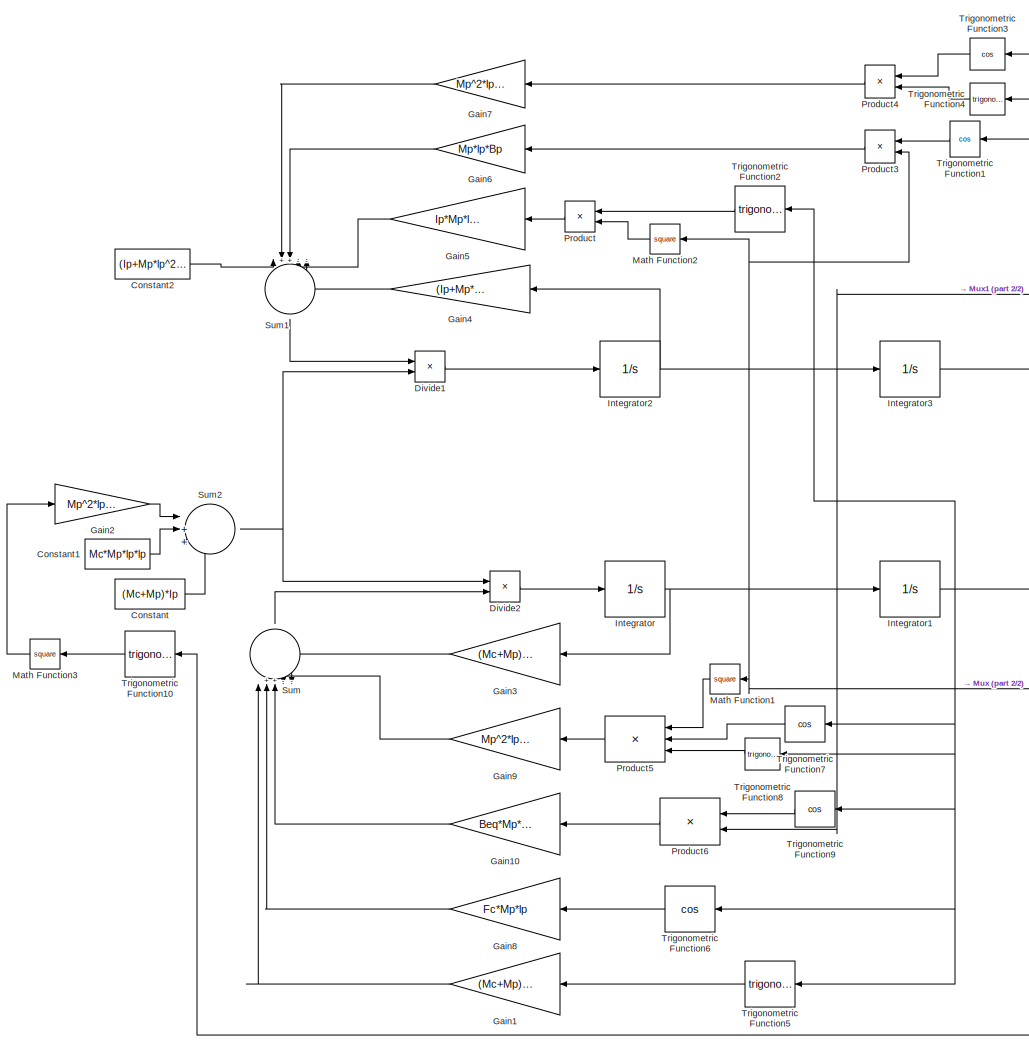
[diagram: root canvas - part 1/2, center side, full height]
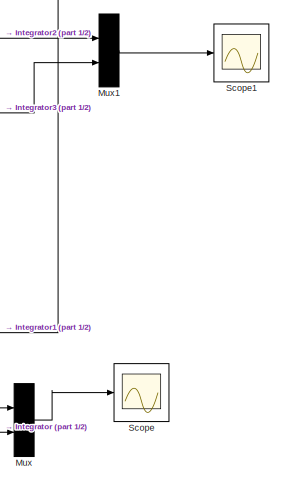
[diagram: root canvas - part 2/2, middle right region]
MODEL slx_dd4658f80110
KIND model
CONFIG AbsTol = auto
CONFIG EnableMultiTasking = off
CONFIG FixedStep = auto
CONFIG InitFcn = Ip = 0.0079;     % kg*m^2  (Momento de inercia del péndulo)\nMc = 0.7031;     % kg      (Masa del carro)\nlp = 0.3302;     % m       (Distancia al centro de gravedad)\nMp = 0.23;       % kg      (Masa del péndulo)\nFc = 0;          % N       (Fuerza aplicada al carro)\nBeq = 4.3;       % Ns/m    (Coeficiente de amortiguamiento equivalente)\ng = 9.81;        % m/s^2   (Gravedad)\nBp = 0.0024;     % Nms/ra...<+49ch>
CONFIG MaxStep = auto
CONFIG MinStep = auto
CONFIG RelTol = 1e-3
CONFIG SampleTimeConstraint = Unconstrained
CONFIG SolverName = VariableStepAuto
CONFIG StartTime = 0.0
CONFIG StopTime = 10
BLOCK [Constant] Constant
  Value = (Mc+Mp)*Ip
BLOCK [Constant] Constant1
  Value = Mc*Mp*lp*lp
BLOCK [Constant] Constant2
  Value = (Ip+Mp*lp^2)*Fc
BLOCK [Product] Divide1
  Inputs = */
BLOCK [Product] Divide2
  Inputs = /*
BLOCK [Gain] Gain1
  Gain = (Mc+Mp)*Mp*g*lp
  NameLocation = top
BLOCK [Gain] Gain10
  Gain = Beq*Mp*lp
  NameLocation = top
BLOCK [Gain] Gain2
  Gain = Mp^2*lp^2
BLOCK [Gain] Gain3
  Gain = (Mc+Mp)*Bp
  NameLocation = top
BLOCK [Gain] Gain4
  Gain = (Ip+Mp*lp^2)*Beq
  NameLocation = top
BLOCK [Gain] Gain5
  Gain = Ip*Mp*lp - Mp^2*lp^3
  NameLocation = top
BLOCK [Gain] Gain6
  Gain = Mp*lp*Bp
  NameLocation = top
BLOCK [Gain] Gain7
  Gain = Mp^2*lp^2*g
  NameLocation = top
BLOCK [Gain] Gain8
  Gain = Fc*Mp*lp
  NameLocation = top
BLOCK [Gain] Gain9
  Gain = Mp^2*lp^2
  NameLocation = top
BLOCK [Integrator] Integrator
BLOCK [Integrator] Integrator1
  InitialCondition = 1 * pi/180
BLOCK [Integrator] Integrator2
BLOCK [Integrator] Integrator3
BLOCK [Math] Math Function1
  NameLocation = top
  Operator = square
BLOCK [Math] Math Function2
  NameLocation = top
  Operator = square
BLOCK [Math] Math Function3
  NameLocation = top
  Operator = square
BLOCK [Mux] Mux
  DisplayOption = bar
  Inputs = 2
BLOCK [Mux] Mux1
  DisplayOption = bar
  Inputs = 2
BLOCK [Product] Product
  NameLocation = top
BLOCK [Product] Product3
  NameLocation = top
BLOCK [Product] Product4
  NameLocation = top
BLOCK [Product] Product5
  Inputs = 3
  NameLocation = top
BLOCK [Product] Product6
  NameLocation = top
BLOCK [Scope] Scope
  Floating = off
  NumInputPorts = 1
  ScopeSpecificationString = Simulink.scopes.TimeScopeBlockCfg('CurrentConfiguration', extmgr.ConfigurationSet(extmgr.Configuration('Core','General UI',true),extmgr.Configuration('Core','Source UI',true),extmgr.Configuration('Sources','WiredSimulink',true,'DataLoggingVariableName','ScopeData1'),extmgr.Configuration('Visuals','Time Domain',true,'SerializedDisplays',{struct('MinYLimReal','-12.3162','MaxYLimReal','110.84584','YL...<+1509ch>
BLOCK [Scope] Scope1
  Floating = off
  NumInputPorts = 1
  ScopeSpecificationString = Simulink.scopes.TimeScopeBlockCfg('CurrentConfiguration', extmgr.ConfigurationSet(extmgr.Configuration('Core','General UI',true),extmgr.Configuration('Core','Source UI',true),extmgr.Configuration('Sources','WiredSimulink',true),extmgr.Configuration('Visuals','Time Domain',true,'SerializedDisplays',{struct('MinYLimReal','-0.96656','MaxYLimReal','0.9527','YLabelReal','','MinYLimMag','0.00000','MaxYL...<+1460ch>
BLOCK [Sum] Sum
  Inputs = |++---
  NameLocation = right
BLOCK [Sum] Sum1
  Inputs = |++---
  NameLocation = left
BLOCK [Sum] Sum2
  Inputs = |+++
BLOCK [Trigonometry] Trigonometric Function1
  NameLocation = top
  Operator = cos
BLOCK [Trigonometry] Trigonometric Function10
  NameLocation = top
BLOCK [Trigonometry] Trigonometric Function2
  NameLocation = top
BLOCK [Trigonometry] Trigonometric Function3
  NameLocation = top
  Operator = cos
BLOCK [Trigonometry] Trigonometric Function4
  NameLocation = top
BLOCK [Trigonometry] Trigonometric Function5
  NameLocation = top
BLOCK [Trigonometry] Trigonometric Function6
  NameLocation = top
  Operator = cos
BLOCK [Trigonometry] Trigonometric Function7
  NameLocation = top
  Operator = cos
BLOCK [Trigonometry] Trigonometric Function8
  NameLocation = top
BLOCK [Trigonometry] Trigonometric Function9
  NameLocation = top
  Operator = cos
LINE Constant1:1 -> Sum2:2
LINE Constant2:1 -> Sum1:1
LINE Constant:1 -> Sum2:3
LINE Divide1:1 -> Integrator2:1
LINE Divide2:1 -> Integrator:1
LINE Gain10:1 -> Sum:3
LINE Gain1:1 -> Sum:1
LINE Gain2:1 -> Sum2:1
LINE Gain3:1 -> Sum:5
LINE Gain4:1 -> Sum1:5
LINE Gain5:1 -> Sum1:4
LINE Gain6:1 -> Sum1:3
LINE Gain7:1 -> Sum1:2
LINE Gain8:1 -> Sum:2
LINE Gain9:1 -> Sum:4
NET Integrator1:1 -> Mux:1, Trigonometric Function10:1, Trigonometric Function1:1, Trigonometric Function2:1, Trigonometric Function3:1, Trigonometric Function4:1, Trigonometric Function5:1, Trigonometric Function6:1, Trigonometric Function7:1, Trigonometric Function8:1, Trigonometric Function9:1
NET Integrator2:1 -> Gain4:1, Integrator3:1, Mux1:1, Product6:2
LINE Integrator3:1 -> Mux1:2
NET Integrator:1 -> Gain3:1, Integrator1:1, Math Function1:1, Math Function2:1, Mux:2, Product3:2
LINE Math Function1:1 -> Product5:1
LINE Math Function2:1 -> Product:2
LINE Math Function3:1 -> Gain2:1
LINE Mux1:1 -> Scope1:1
LINE Mux:1 -> Scope:1
LINE Product3:1 -> Gain6:1
LINE Product4:1 -> Gain7:1
LINE Product5:1 -> Gain9:1
LINE Product6:1 -> Gain10:1
LINE Product:1 -> Gain5:1
LINE Sum1:1 -> Divide1:1
NET Sum2:1 -> Divide1:2, Divide2:1
LINE Sum:1 -> Divide2:2
LINE Trigonometric Function10:1 -> Math Function3:1
LINE Trigonometric Function1:1 -> Product3:1
LINE Trigonometric Function2:1 -> Product:1
LINE Trigonometric Function3:1 -> Product4:1
LINE Trigonometric Function4:1 -> Product4:2
LINE Trigonometric Function5:1 -> Gain1:1
LINE Trigonometric Function6:1 -> Gain8:1
LINE Trigonometric Function7:1 -> Product5:2
LINE Trigonometric Function8:1 -> Product5:3
LINE Trigonometric Function9:1 -> Product6:1
note: NET lines group one-source signal fan-out (src -> all destinations, sorted); 1:1 wires keep LINE
